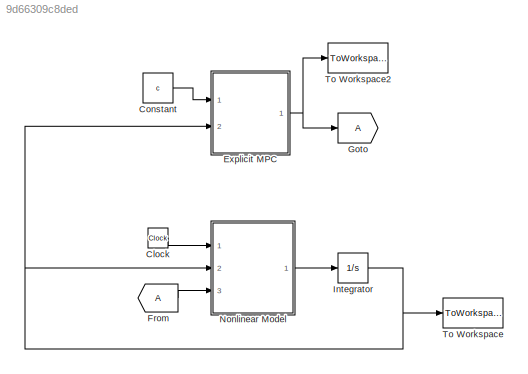
MODEL slx_9d66309c8ded
KIND model
CONFIG AbsTol = auto
CONFIG EnableMultiTasking = off
CONFIG FixedStep = auto
CONFIG MaxStep = auto
CONFIG MinStep = auto
CONFIG RelTol = 1e-3
CONFIG SampleTimeConstraint = Unconstrained
CONFIG Solver = ode15s
CONFIG SolverName = ode15s
CONFIG StartTime = 0.0
CONFIG StopTime = T
BLOCK [Clock] Clock
BLOCK [Constant] Constant
  Value = c
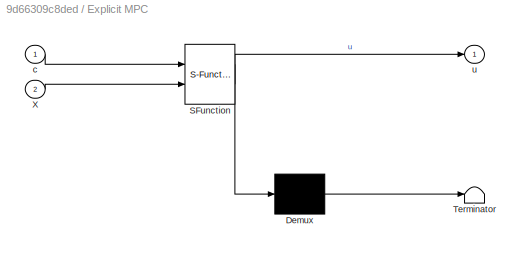
BLOCK [SubSystem] Explicit MPC
  ErrorFcn = Stateflow.Translate.translate
  PermitHierarchicalResolution = ExplicitOnly
  Ports = [2, 1]
  RequestExecContextInheritance = off
  SFBlockType = MATLAB Function
  TreatAsAtomicUnit = on
BLOCK [Demux] Explicit MPC/ Demux 
  Outputs = 1
  Ports = [1, 1]
BLOCK [S-Function] Explicit MPC/ SFunction 
  EnableBusSupport = on
  FunctionName = sf_sfun
  PortCounts = [2 2]
  Ports = [2, 2]
  SFcnIsStateOwnerBlock = off
  SFunctionDeploymentMode = off
  Tag = Stateflow S-Function simulation_ENMPC 2
BLOCK [Terminator] Explicit MPC/ Terminator 
BLOCK [Inport] Explicit MPC/X
  IconDisplay = Port number
  Port = 2
BLOCK [Inport] Explicit MPC/c
  IconDisplay = Port number
BLOCK [Outport] Explicit MPC/u
  IconDisplay = Port number
BLOCK [From] From
BLOCK [Goto] Goto
BLOCK [Integrator] Integrator
  InitialCondition = x0
  Ports = [1, 1]
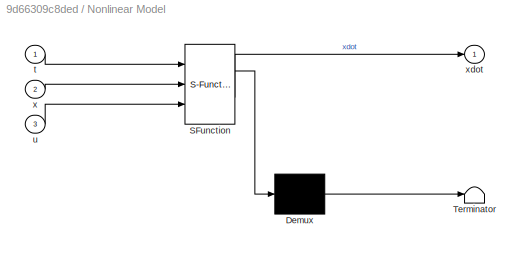
BLOCK [SubSystem] Nonlinear Model
  ErrorFcn = Stateflow.Translate.translate
  PermitHierarchicalResolution = ExplicitOnly
  Ports = [3, 1]
  RequestExecContextInheritance = off
  SFBlockType = MATLAB Function
  TreatAsAtomicUnit = on
BLOCK [Demux] Nonlinear Model/ Demux 
  Outputs = 1
  Ports = [1, 1]
BLOCK [S-Function] Nonlinear Model/ SFunction 
  EnableBusSupport = on
  FunctionName = sf_sfun
  PortCounts = [3 2]
  Ports = [3, 2]
  SFcnIsStateOwnerBlock = off
  SFunctionDeploymentMode = off
  Tag = Stateflow S-Function simulation_ENMPC 1
BLOCK [Terminator] Nonlinear Model/ Terminator 
BLOCK [Inport] Nonlinear Model/t
  IconDisplay = Port number
BLOCK [Inport] Nonlinear Model/u
  IconDisplay = Port number
  Port = 3
BLOCK [Inport] Nonlinear Model/x
  IconDisplay = Port number
  Port = 2
BLOCK [Outport] Nonlinear Model/xdot
  IconDisplay = Port number
BLOCK [ToWorkspace] To Workspace
  FixptAsFi = on
  MaxDataPoints = inf
  Ports = [1]
  SampleTime = -1
  Save2DSignal = 3-D array (concatenate along third dimension)
  SaveFormat = Timeseries
  VariableName = xhist
BLOCK [ToWorkspace] To Workspace2
  FixptAsFi = on
  MaxDataPoints = inf
  Ports = [1]
  SampleTime = -1
  Save2DSignal = 3-D array (concatenate along third dimension)
  SaveFormat = Timeseries
  VariableName = uhist
LINE Clock:1 -> Nonlinear Model:1
LINE Constant:1 -> Explicit MPC:1
NET Explicit MPC:1 -> Goto:1, To Workspace2:1
LINE From:1 -> Nonlinear Model:3
NET Integrator:1 -> Explicit MPC:2, Nonlinear Model:2, To Workspace:1
LINE Nonlinear Model:1 -> Integrator:1
note: NET lines group one-source signal fan-out (src -> all destinations, sorted); 1:1 wires keep LINE
CHART Nonlinear Model states=1 transitions=1
  STATE_LABEL 'eML_blk_kernel()'
  STATE_LABEL 'SCRIPT:\nfunction xdot = fcn(t, x, u)\n\nxdot = [x(2) + u*(0.5 + 0.5*x(1));...\n     x(1) + u*(0.5 - 2.0*x(2))];'
CHART Explicit MPC states=1 transitions=1
  STATE_LABEL 'eML_blk_kernel()'
  STATE_LABEL 'SCRIPT:\nfunction u = fcn(c, X)\n\n% Basis functions\nS = @(x,y) [1, x, y, x*y, (2*x^2-1)*y, (2*y^2-1)*x,...\n            (4*x^3 - 3*x), (4*y^3 - 3*y)];\n\n% Computing approx NMPC\nu = S(X(1), X(2))*c;\n\n% Projection\nif u > 2\n    u = 2;\nend\n\nif u < -2\n    u = -2;\nend\n   '
